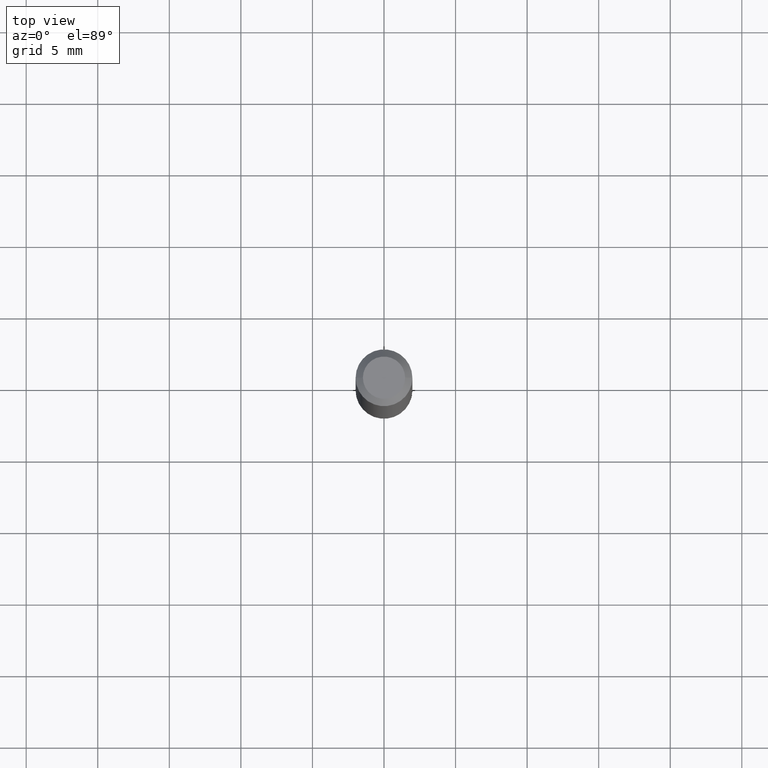
[diagram: clean part render]
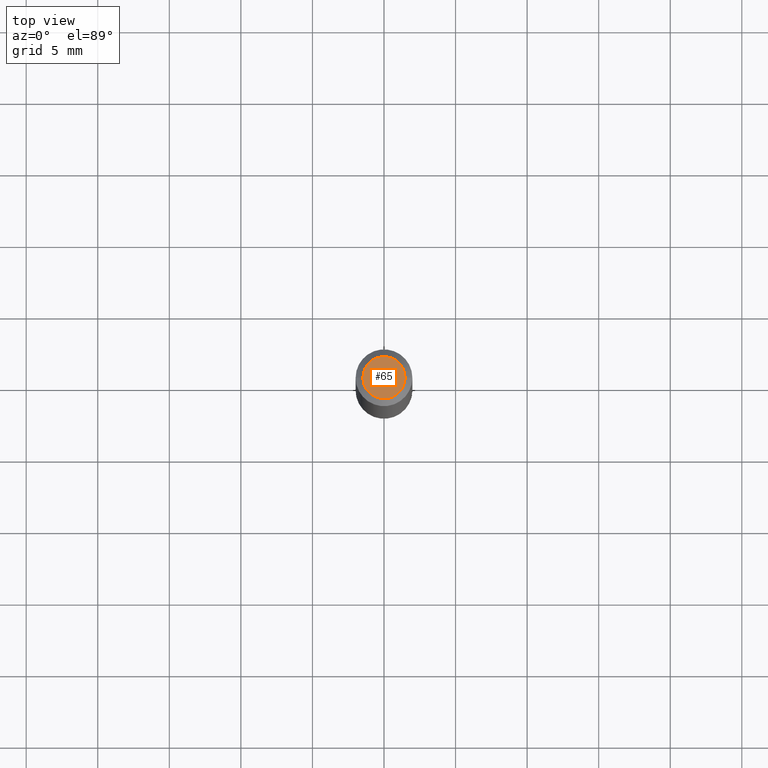
[diagram: same view with one face highlighted and labeled with its STEP entity id]
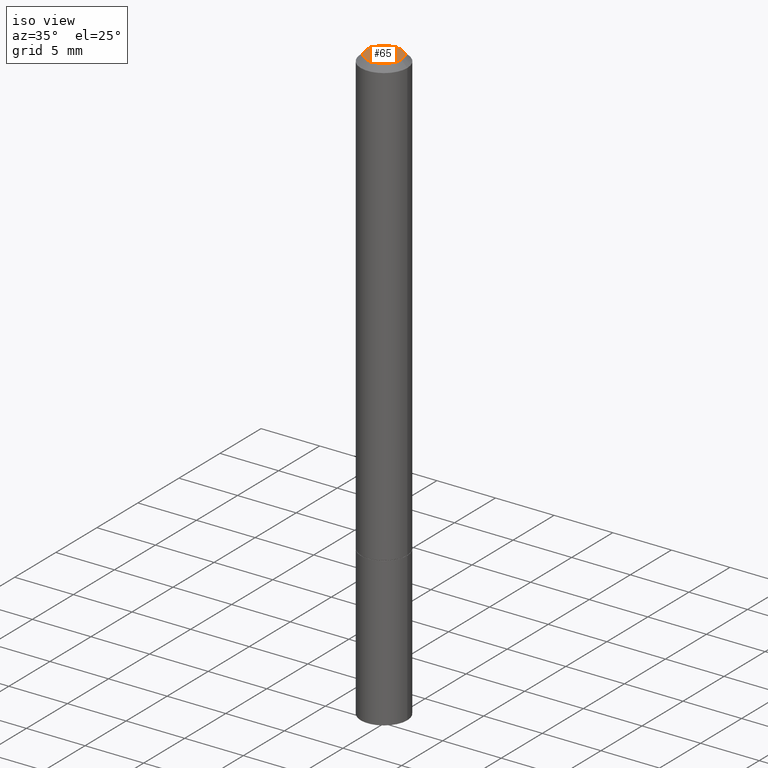
[diagram: same view with one face highlighted and labeled with its STEP entity id]
A machine part, top view. The second image highlights one B-rep face of the part: STEP entity #65.
A second angle (iso view) of the same face is appended — the face is thin or edge-on in the first view.
In plain terms, the highlighted planar face has unit normal (0, -0, -1).
Its self-contained STEP definition (entity closure, byte-faithful):
#8 = CARTESIAN_POINT ( 'NONE',  ( 1.043851414335219820E-46, -1.490343170380447200E-32, -4.268512490100411279E-18 ) ) ;
#20 = AXIS2_PLACEMENT_3D ( 'NONE', #8, #126, #372 ) ;
#59 = DIRECTION ( 'NONE',  ( 1.000000000000000000, -6.982962677686266711E-15, 4.876032197214162663E-29 ) ) ;
#65 = ADVANCED_FACE ( 'NONE', ( #94 ), #145, .F. ) ;
#90 = EDGE_CURVE ( 'NONE', #250, #112, #129, .T. ) ;
#94 = FACE_OUTER_BOUND ( 'NONE', #343, .T. ) ;
#112 = VERTEX_POINT ( 'NONE', #242 ) ;
#122 = CARTESIAN_POINT ( 'NONE',  ( 1.043851414335219820E-46, -1.490343170380447200E-32, -4.268512490100411279E-18 ) ) ;
#126 = DIRECTION ( 'NONE',  ( -2.445468806185136597E-29, 3.491481338843145583E-15, 1.000000000000000000 ) ) ;
#129 = CIRCLE ( 'NONE', #162, 0.05809999999999985315 ) ;
#145 = PLANE ( 'NONE',  #259 ) ;
#162 = AXIS2_PLACEMENT_3D ( 'NONE', #122, #327, #59 ) ;
#177 = DIRECTION ( 'NONE',  ( 2.438088387897960049E-29, -3.491481338843145188E-15, -1.000000000000000000 ) ) ;
#197 = ORIENTED_EDGE ( 'NONE', *, *, #330, .T. ) ;
#224 = CARTESIAN_POINT ( 'NONE',  ( -0.05809999999999985315, 4.406249449620020947E-16, -4.268512490103370278E-18 ) ) ;
#242 = CARTESIAN_POINT ( 'NONE',  ( 0.05809999999999985315, -5.021147270366716439E-16, -4.268512490097237346E-18 ) ) ;
#250 = VERTEX_POINT ( 'NONE', #224 ) ;
#259 = AXIS2_PLACEMENT_3D ( 'NONE', #389, #177, #383 ) ;
#297 = ORIENTED_EDGE ( 'NONE', *, *, #90, .T. ) ;
#327 = DIRECTION ( 'NONE',  ( -2.445468806185136597E-29, 3.491481338843145583E-15, 1.000000000000000000 ) ) ;
#329 = CIRCLE ( 'NONE', #20, 0.05809999999999985315 ) ;
#330 = EDGE_CURVE ( 'NONE', #112, #250, #329, .T. ) ;
#343 = EDGE_LOOP ( 'NONE', ( #297, #197 ) ) ;
#372 = DIRECTION ( 'NONE',  ( 1.000000000000000000, -6.982962677686266711E-15, 4.876032197214162663E-29 ) ) ;
#383 = DIRECTION ( 'NONE',  ( -1.000000000000000000, 6.982962677686265922E-15, -4.876176775795935793E-29 ) ) ;
#389 = CARTESIAN_POINT ( 'NONE',  ( 4.057101315735710372E-16, 0.05809999999999985315, -2.049893220318364469E-16 ) ) ;